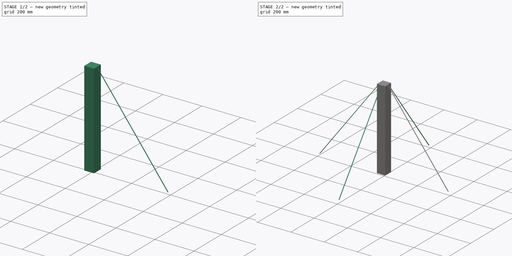
[diagram: build sequence overview — one tinted view per stage of 2, left to right]
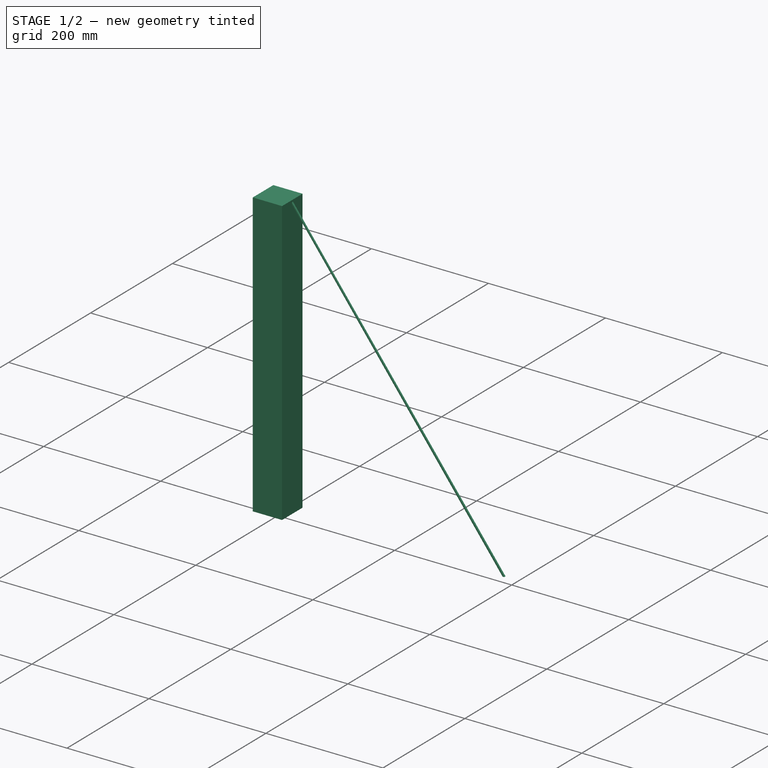
[diagram: stage 1 of 2 — iso view after this stage's code; geometry added in this stage tinted green]
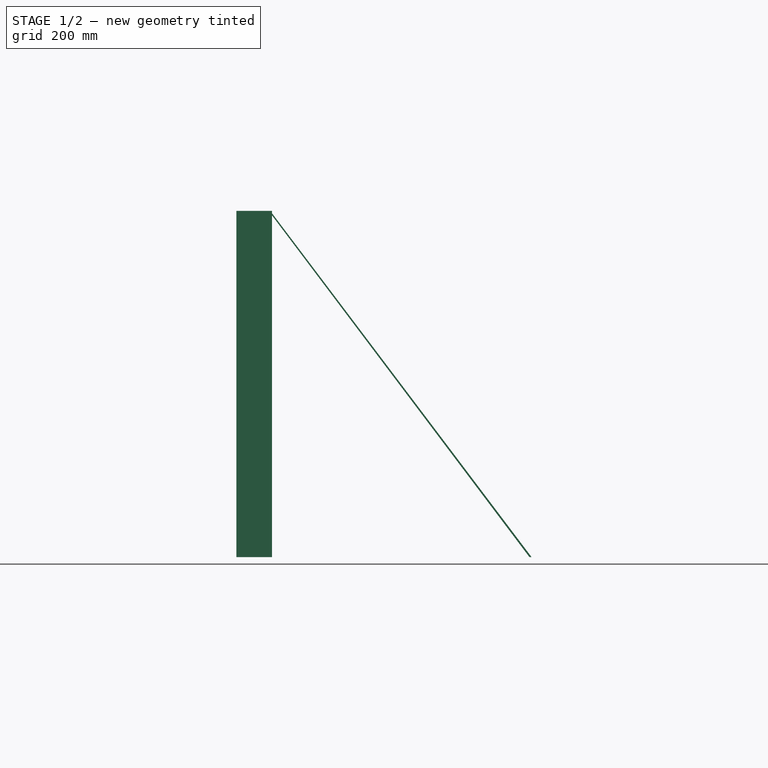
[diagram: stage 1 of 2 — front view after this stage's code; geometry added in this stage tinted green]
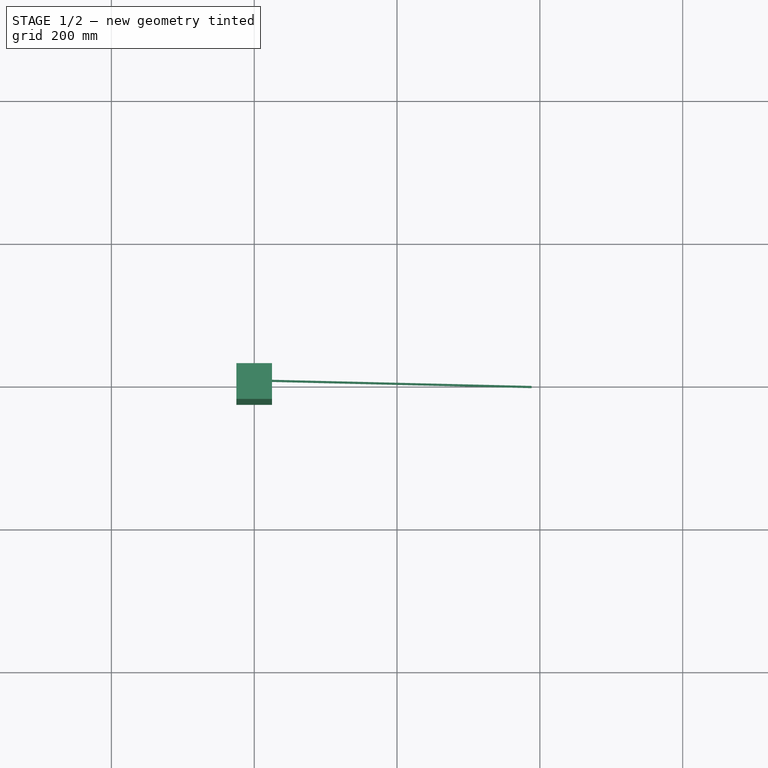
[diagram: stage 1 of 2 — top view after this stage's code; geometry added in this stage tinted green]
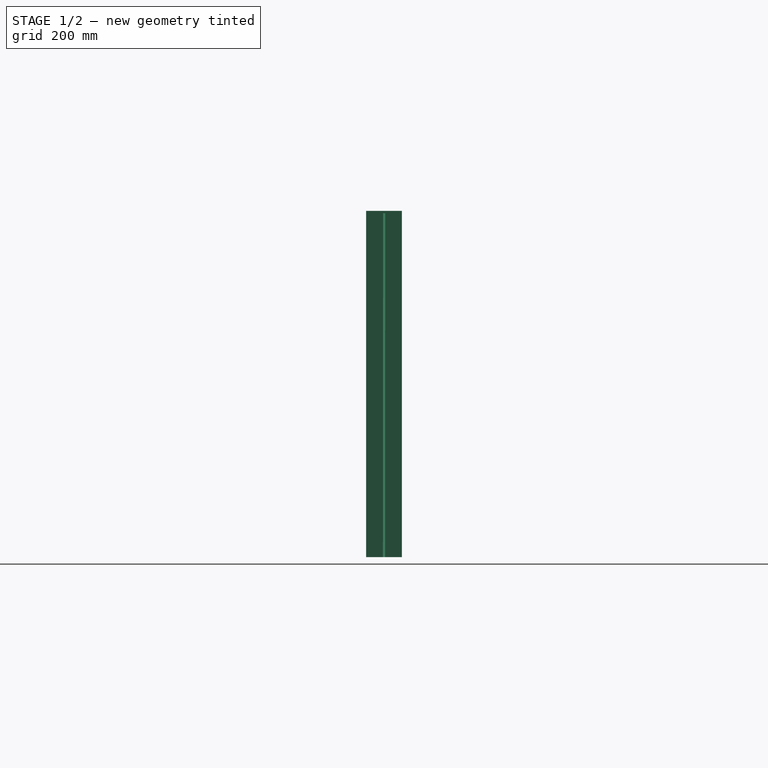
[diagram: stage 1 of 2 — right view after this stage's code; geometry added in this stage tinted green]
FCSTD DOCUMENT  (FreeCAD 0.22R35249 (Git))
Label: pdwrapper_dynamic_support_example
License: All rights reserved
LicenseURL: http://en.wikipedia.org/wiki/All_rights_reserved
objects: Sketcher::SketchObject×2, PartDesign::AdditiveBox×1, PartDesign::AdditiveLoft×1, PartDesign::PolarPattern×1, App::FeaturePython×1, App::TextDocument×1, PartDesign::FeaturePython×1, PartDesign::Body×1
note: 9 computed .brp shape members not serialized (recipe doc carries the construction recipe); baked Part::Feature solids carry a one-line shape summary decoded from their .brp

FEATURE [PartDesign::AdditiveBox] Box
  AttacherType = Attacher::AttachEngine3D
  AttachmentOffset = pos=(-25,-25,0) rot=(0,0,1;0rad)
  Height = 485
  Length = 50
  MapMode = 5
  Placement = pos=(-25,-25,0) rot=(0,0,1;0rad)
  Support = -> [XY_Plane]
  Width = 50
  expr: .AttachmentOffset.Base.x = -Width / 2
  expr: .AttachmentOffset.Base.y = -Length / 2
  expr: Height = dd.ddHeight
FEATURE [Sketcher::SketchObject] Sketch
  AttachmentOffset = pos=(-23,482,23.5) rot=(0,0,1;0rad)
  FullyConstrained = true
  MapMode = 5
  Placement = pos=(23.5014,-23.0013,482) rot=(0.57735,0.57735,0.57735;2.0944rad)
  Support = -> [YZ_Plane]
  expr: .AttachmentOffset.Base.x = -Box.Length / 2 + 2 mm
  expr: .AttachmentOffset.Base.y = Box.Height - 3 mm
  expr: .AttachmentOffset.Base.z = Box.Width / 2 - 1.5 mm
  expr: Constraints[7] = Box.Width / 2 - 3.25 mm
  sketch-geometry (4):
    g0: LineSegment StartX=21.75 StartY=1.5 StartZ=0 EndX=24.75 EndY=1.5 EndZ=0
    g1: LineSegment StartX=24.75 StartY=1.5 StartZ=0 EndX=24.75 EndY=-1.5 EndZ=0
    g2: LineSegment StartX=24.75 StartY=-1.5 StartZ=0 EndX=21.75 EndY=-1.5 EndZ=0
    g3: LineSegment StartX=21.75 StartY=-1.5 StartZ=0 EndX=21.75 EndY=1.5 EndZ=0
  constraints (11):
    c: Coincident(g0,g1)
    c: Coincident(g1,g2)
    c: Coincident(g2,g3)
    c: Coincident(g3,g0)
    c: Horizontal(g0)
    c: Horizontal(g2)
    c: Vertical(g3)
    c: DistanceX(g0) = 21.75
    c: Symmetric(g1,g0,g-1)
    c: DistanceX(g0,g0) = 3
    c: DistanceY(g1,g1) = 3
FEATURE [Sketcher::SketchObject] Sketch001
  FullyConstrained = true
  MapMode = 5
  Support = -> [XY_Plane]
  expr: Constraints[10] = Sketch.Constraints[10]
  expr: Constraints[7] = Sketch.Constraints[7] + Box.Height / 2 * 1.5
  expr: Constraints[9] = Sketch.Constraints[9]
  sketch-geometry (4):
    g0: LineSegment StartX=385.5 StartY=1.5 StartZ=0 EndX=388.5 EndY=1.5 EndZ=0
    g1: LineSegment StartX=388.5 StartY=1.5 StartZ=0 EndX=388.5 EndY=-1.5 EndZ=0
    g2: LineSegment StartX=388.5 StartY=-1.5 StartZ=0 EndX=385.5 EndY=-1.5 EndZ=0
    g3: LineSegment StartX=385.5 StartY=-1.5 StartZ=0 EndX=385.5 EndY=1.5 EndZ=0
  constraints (11):
    c: Coincident(g0,g1)
    c: Coincident(g1,g2)
    c: Coincident(g2,g3)
    c: Coincident(g3,g0)
    c: Horizontal(g0)
    c: Horizontal(g2)
    c: Vertical(g3)
    c: DistanceX(g0) = 385.5
    c: Symmetric(g1,g0,g-1)
    c: DistanceX(g0,g0) = 3
    c: DistanceY(g1,g1) = 3
FEATURE [PartDesign::AdditiveLoft] AdditiveLoft
  BaseFeature = -> Box
  Closed = false
  Placement = pos=(-25,-25,0) rot=(0,0,1;0rad)
  Profile = -> Sketch
  Ruled = false
  Sections = -> [Sketch001]
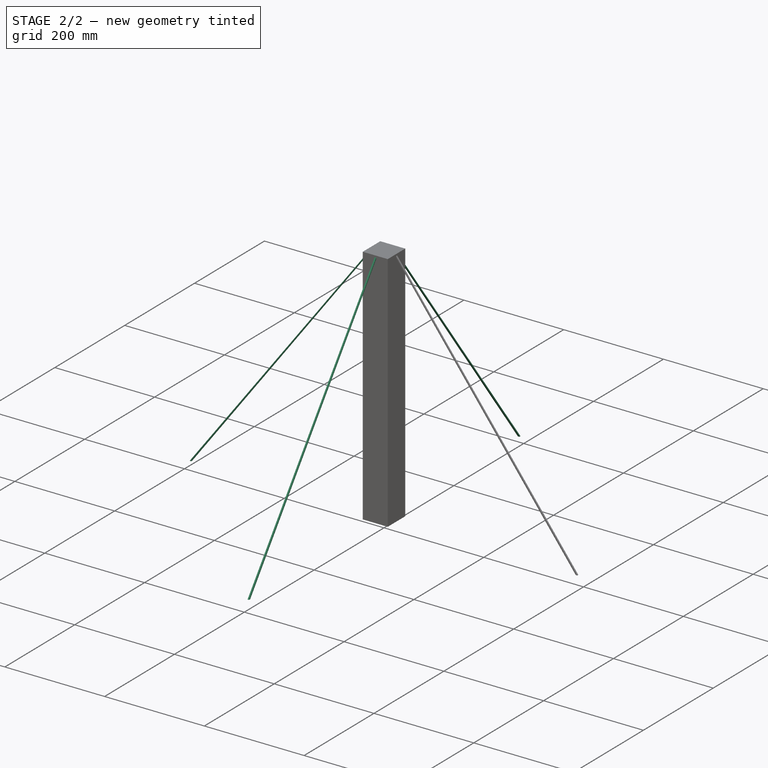
[diagram: stage 2 of 2 — iso view after this stage's code; geometry added in this stage tinted green]
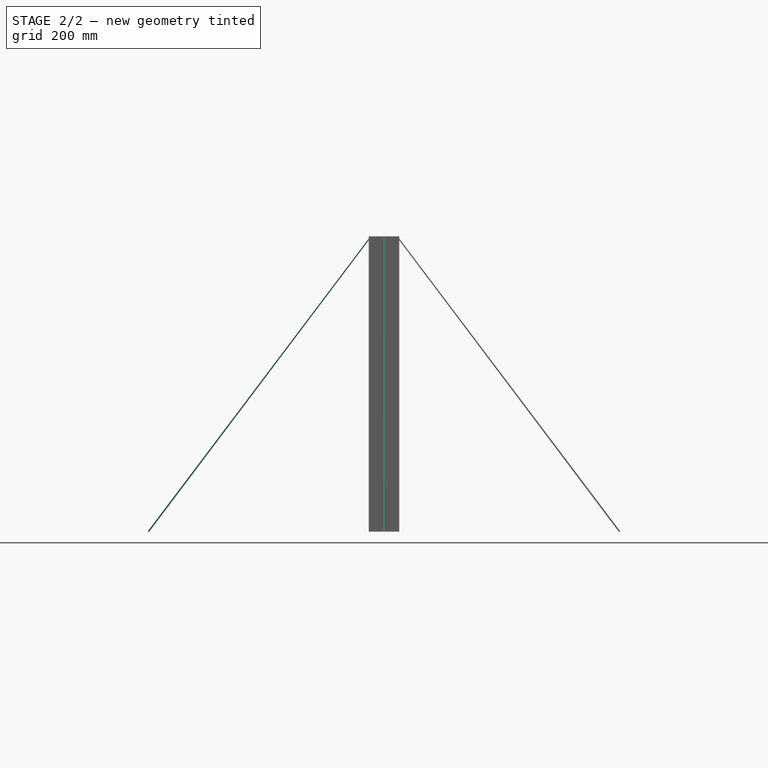
[diagram: stage 2 of 2 — front view after this stage's code; geometry added in this stage tinted green]
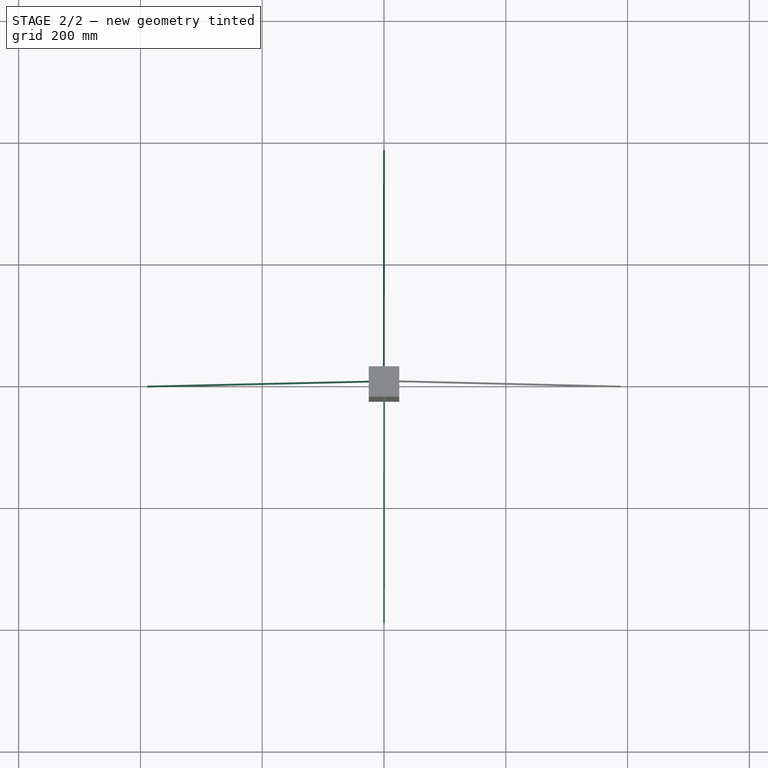
[diagram: stage 2 of 2 — top view after this stage's code; geometry added in this stage tinted green]
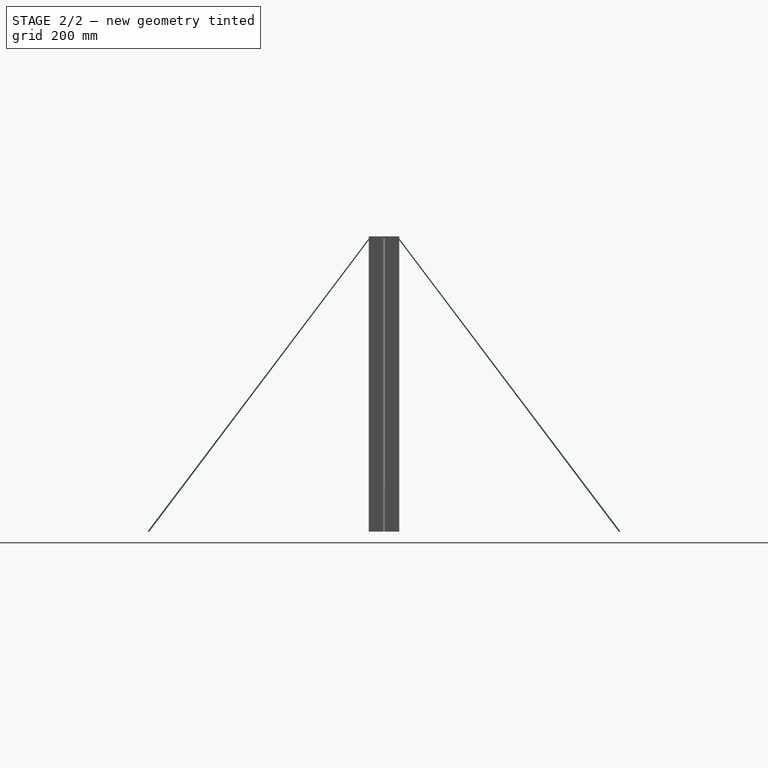
[diagram: stage 2 of 2 — right view after this stage's code; geometry added in this stage tinted green]
FEATURE [PartDesign::PolarPattern] PolarPattern
  Angle = 360
  Axis = -> Z_Axis
  BaseFeature = -> AdditiveLoft
  Mode = 0
  Occurrences = 4
  Offset = 120
  Originals = -> [AdditiveLoft]
  Placement = pos=(-25,-25,0) rot=(0,0,1;0rad)
  expr: Occurrences = 4
FEATURE [App::FeaturePython] dd  # WARN: FeaturePython — macro-defined, semantics opaque (R4)
  DynamicData = Created with DynamicData (v2.31) workbench. | This is a simple container object built | for holding custom properties.  Worbench | installation is not required to use the | container object -- instead only for | adding / removing custom properties. | (But this can also be done via scripting.)
  ddAddSupport = 0
  ddHeight = 485
  ddMaxHeightWithoutSupport = 482
  expr: ddAddSupport = ddHeight > ddMaxHeightWithoutSupport ? 0 : 1
FEATURE [App::TextDocument] Text_document  label="readme"
  Text = <blob: 2075 chars omitted>
FEATURE [PartDesign::FeaturePython] PDW_None  # link proxy (typed FeaturePython)
  BaseFeature = -> PolarPattern
  Body = Body
  ClaimChildren = false
  EditPlacementAdjustments = false
  Enabled = 0
  LinkedObject = -> AdditiveLoft
  MeshTolerance = 0.1
  PatternBaseOffset = 0
  PatternBaseScale = 1
  PatternBaseScaleXYZ = (1,1,1)
  PatternOffsetCut = false
  PatternOffsetIntersection = false
  PatternOffsetJoin = 0
  PatternOffsetMode = 0
  PatternOffsetSelfIntersection = false
  PatternOperation = 0
  PatternOperationDefault = None
  PatternScaleCut = false
  PatternShapeOffset = 0
  PatternShapeScale = 1
  PatternShapeScaleXYZ = (1,1,1)
  PatternToolOffset = 0
  PatternToolScale = 1
  PatternToolScaleXYZ = (1,1,1)
  RefineMesh = true
  ShapeManagement = 0
  ShowMeshProps = false
  ShowOffsetProps = false
  ShowScaleProps = false
  ShowWarnings = true
  TipBase = -> PolarPattern
  TipBaseOffset = 0
  TipBaseScale = 1
  TipBaseScaleXYZ = (1,1,1)
  TipOffsetCut = false
  TipOffsetIntersection = false
  TipOffsetJoin = 0
  TipOffsetMode = 0
  TipOffsetSelfIntersection = false
  TipOperation = 4
  TipOperationDefault = None
  TipScaleCut = false
  TipShapeOffset = 0
  TipShapeScale = 1
  TipShapeScaleXYZ = (1,1,1)
  TipTool = -> PolarPattern
  TipToolOffset = 0
  TipToolScale = 1
  TipToolScaleXYZ = (1,1,1)
  Type = None
  UsePatternBaseAddSubShape = false
  UsePatternToolAddSubShape = false
  UseTipBaseAddSubShape = false
  UseTipToolAddSubShape = false
  Version = 0.2023.08.13
  expr: Enabled = dd.ddAddSupport == 1 ? 1 : 0
FEATURE [PartDesign::Body] Body
  Group = -> [Box,Sketch,Sketch001,AdditiveLoft,PolarPattern,PDW_None,dd]
  Origin = -> Origin
  Tip = -> PDW_None
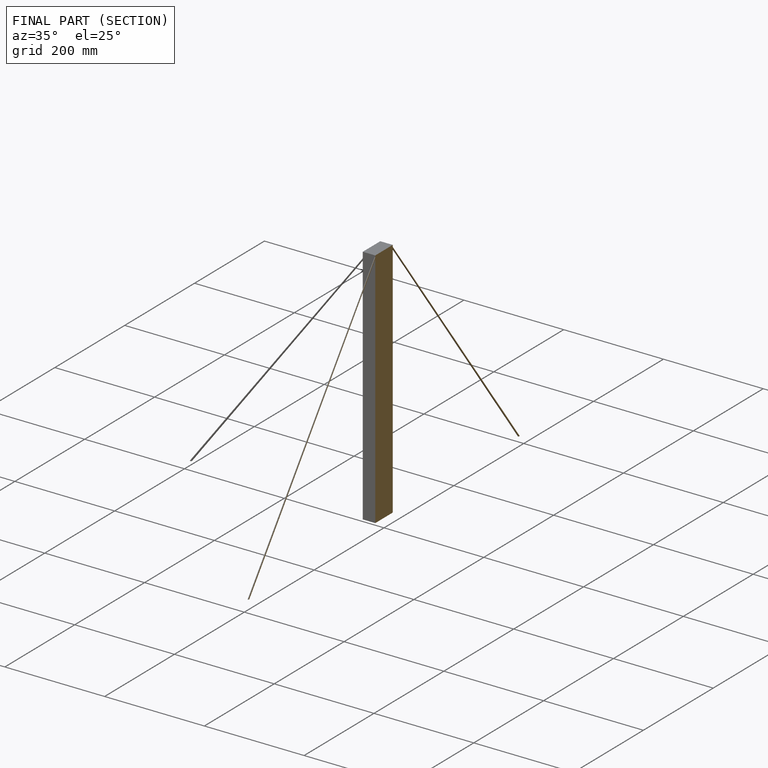
[diagram: finished part — half-section view (interior)]
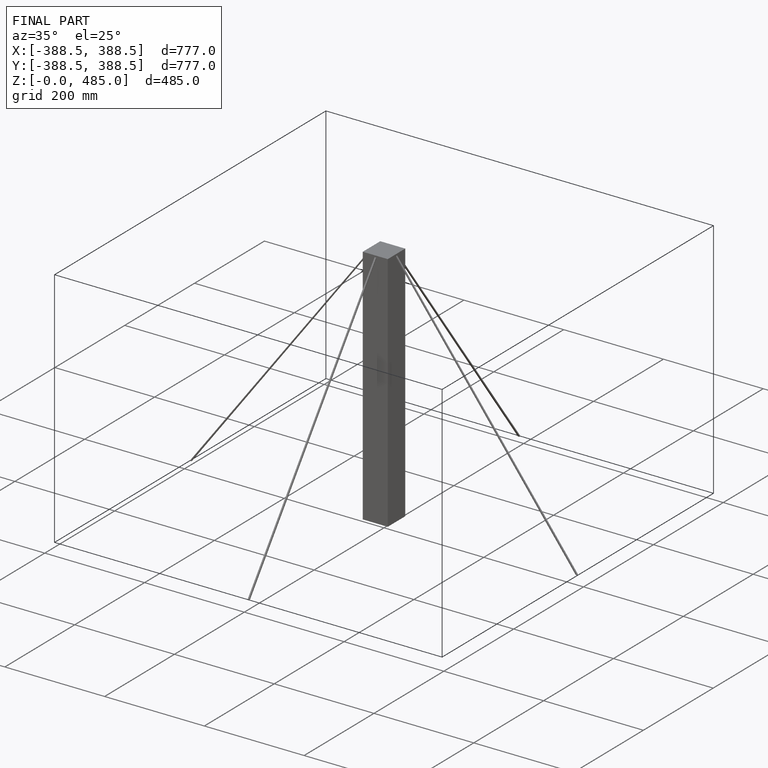
[diagram: finished part — iso view with bounding-box wireframe]
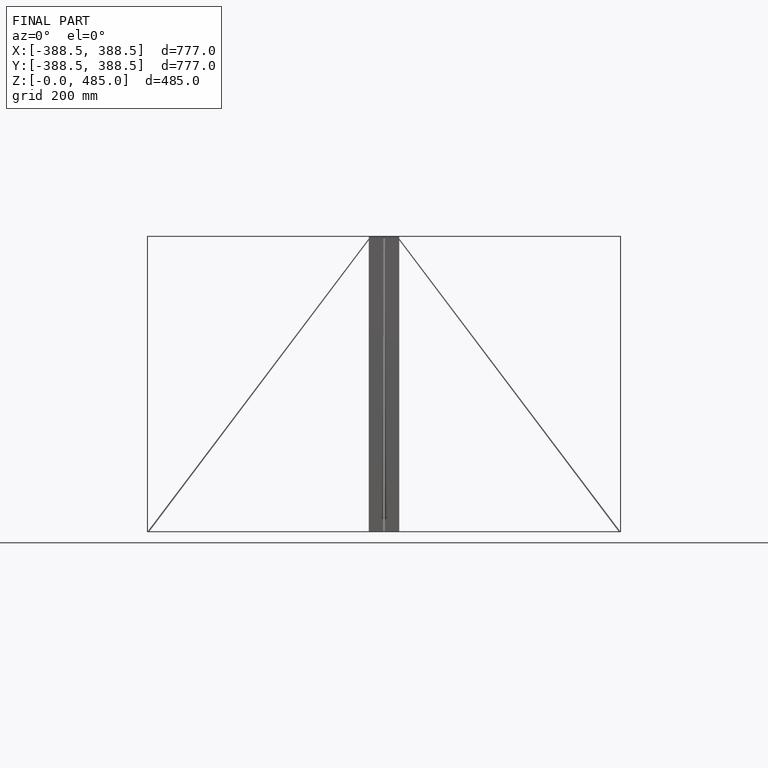
[diagram: finished part — front view with bounding-box wireframe]
